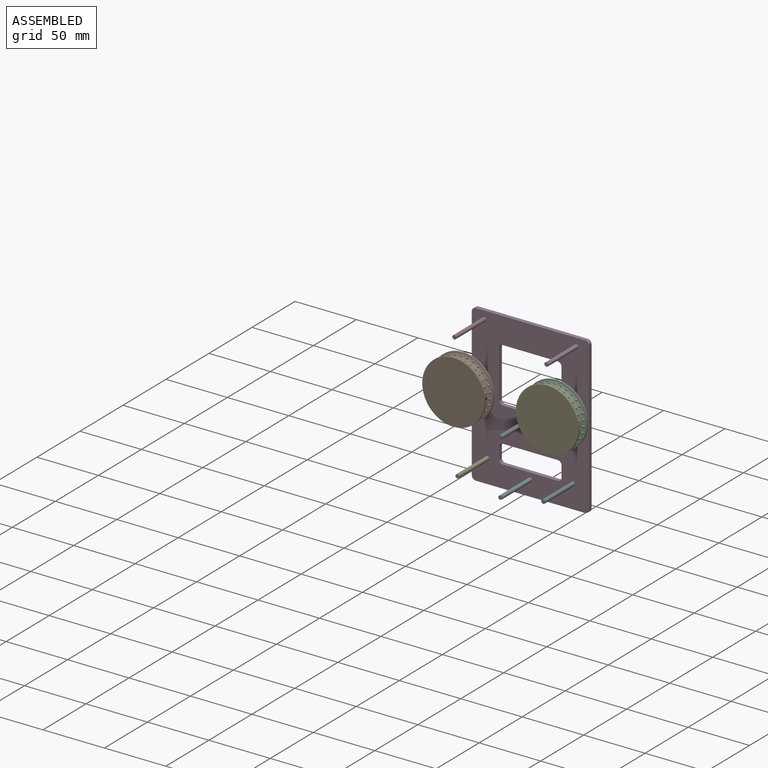
[diagram: assembled view]
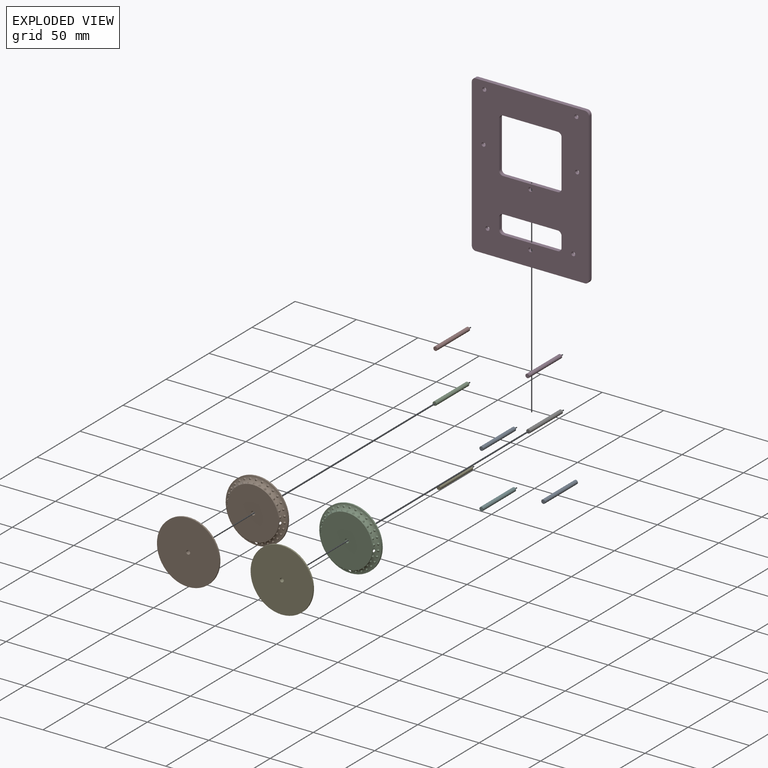
[diagram: exploded view]
GUIDED TOUR — MATED ASSEMBLY (Onshape document 18e1c9169c6198a0fb651a4e, AutoMate assembly 18e1c9169c6198a0fb651a4e_e62e723ce462140aba5e24f2_0214f7fa4d5858f7211a4e40_default)

This assembly has 13 components, labeled P0..P12 below (a component is one placed occurrence of a part; the same part can appear more than once), held together by 12 mates. A mate is a constraint between two components; its type names the relative motion it leaves free:
  FASTENED — locks the two components together rigidly (no relative motion).
Axis/direction vectors are unit vectors and 'through' points are millimeter coordinates, both in the assembly's world frame.

MATES
  1. FASTENED "Fastened 3": P2 <-> P3, direction (0.000, 1.000, 0.000) through (-29.36, -14.20, -14.71) mm
  2. FASTENED "Fastened 9": P12 <-> P6, direction (0.000, -1.000, 0.000) through (46.84, -52.30, -14.71) mm
  3. FASTENED "Fastened 5": P4 <-> P3, direction (0.000, 1.000, 0.000) through (-26.18, -14.20, -75.70) mm
  4. FASTENED "Fastened 8": P8 <-> P3, direction (0.000, 1.000, 0.000) through (43.67, -14.20, -75.70) mm
  5. FASTENED "Fastened 2": P7 <-> P3, direction (0.000, 1.000, 0.000) through (-28.72, -14.20, 25.90) mm
  6. FASTENED "Fastened 10": P12 <-> P10, direction (0.000, 1.000, 0.000) through (46.84, -46.59, -14.71) mm
  7. FASTENED "Fastened 6": P0 <-> P3, direction (0.000, 1.000, 0.000) through (8.74, -14.20, -37.60) mm
  8. FASTENED "Fastened 7": P5 <-> P3, direction (0.000, 1.000, 0.000) through (8.74, -14.20, -82.05) mm
  9. FASTENED "Fastened 12": P9 <-> P1, direction (0.000, -1.000, 0.000) through (-29.36, -46.59, -14.71) mm
  10. FASTENED "Fastened 1": P11 <-> P3, direction (0.000, 1.000, 0.000) through (46.21, -14.20, 25.90) mm
  11. FASTENED "Fastened 4": P6 <-> P3, direction (0.000, 1.000, 0.000) through (46.84, -14.20, -14.71) mm
  12. FASTENED "Fastened 11": P1 <-> P2, direction (0.000, -1.000, 0.000) through (-29.36, -52.30, -14.71) mm

ASSEMBLY ORDER
  1. P8 — the base component [order verified]
  2. P4 [order verified]
  3. P0 [order verified]
  4. P2 [order verified]
  5. P7 [order verified]
  6. P11 [order verified]
  7. P6 [order verified]
  8. P5 [order verified]
  9. P3 [order verified]
  10. P10 [order verified]
  11. P9 [order verified]
  12. P12 [order verified]
  13. P1 [order verified]
Order-tag legend:
  [order verified] — this step's position reverses a verified removal order: the component was checked to insert without passing through the ones already placed.

Of the 13 components, 1 carries the full construction recipe — the FeatureScript program that regenerates the part's solid from scratch; the rest are supplied as boundary geometry only.
Because this assembly has more than 12 components, the tour below covers the 12 most significant ones individually (every recipe-attached component first, then the largest by part volume), in assembly order; the remaining 1 are summarized together in a grouped section at the end.
Each toured component is shown spotlighted twice — in the assembled view, then in the exploded view, where a leader line traces a displaced component back to its assembled socket (saturated green if recipe-attached, orange if geometry-only; every other component desaturated gray) — followed by its recipe or geometry summary and the mates that hold it.
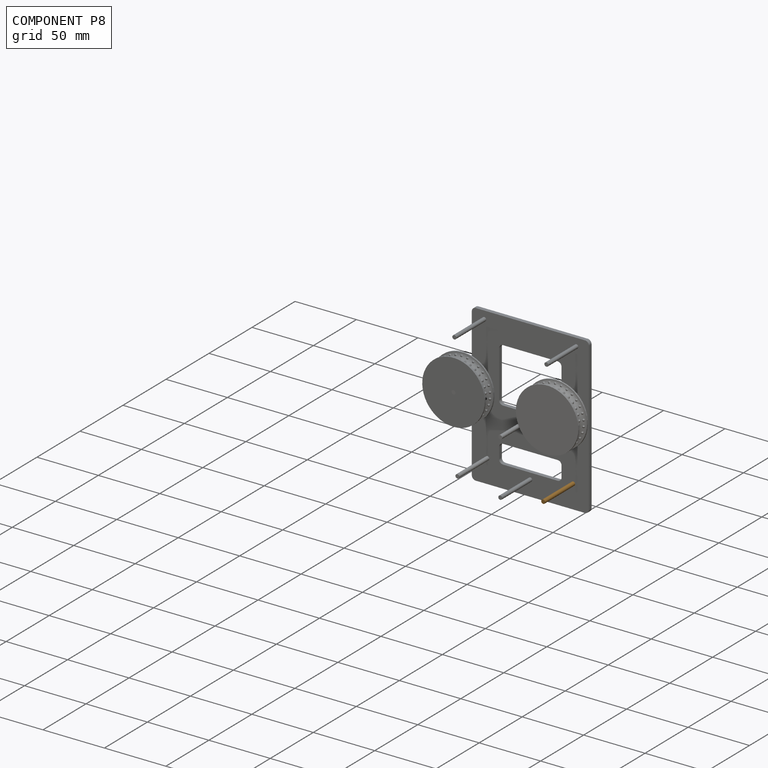
[diagram: component P8 — assembled]
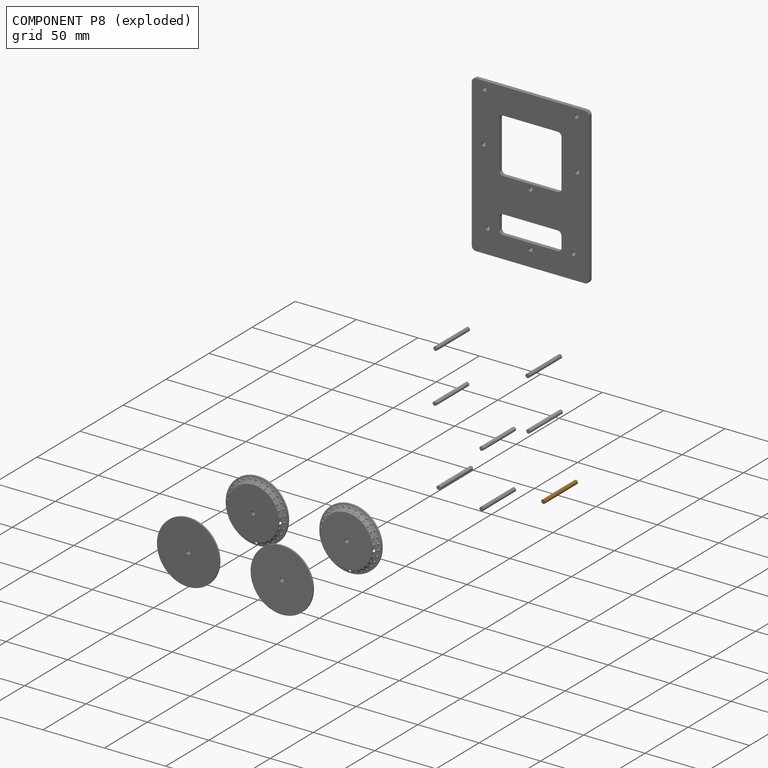
[diagram: component P8 — exploded]
COMPONENT P8 — geometry summary (no construction recipe available for this part):
  bounding box: 38.1 x 3.2 x 3.2 mm
  B-rep topology: 1 solid, 3 faces, 6 edges
  volume: 302 mm^3 (79% of its bounding box)
  symmetry: 2-fold rotationally symmetric about the x axis; revolution-symmetric about the y axis through its bounding-box center; 2-fold rotationally symmetric about the z axis; mirror-symmetric across its x mid-plane, y mid-plane, z mid-plane
Held by: FASTENED mate "Fastened 8" to P3.
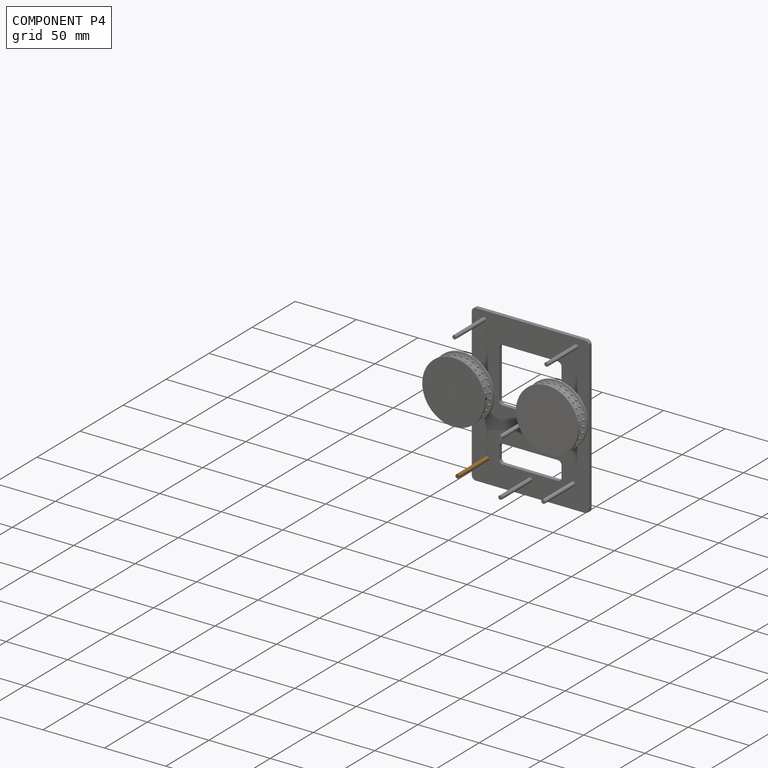
[diagram: component P4 — assembled]
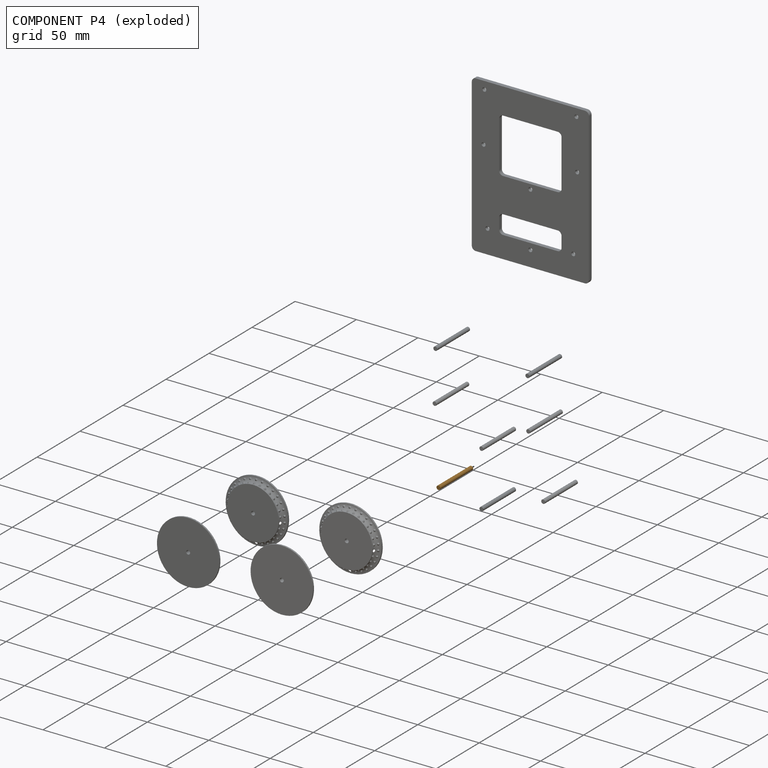
[diagram: component P4 — exploded]
COMPONENT P4 — geometry summary (no construction recipe available for this part):
  bounding box: 38.1 x 3.2 x 3.2 mm
  B-rep topology: 1 solid, 3 faces, 6 edges
  volume: 302 mm^3 (79% of its bounding box)
  symmetry: 2-fold rotationally symmetric about the x axis; revolution-symmetric about the y axis through its bounding-box center; 2-fold rotationally symmetric about the z axis; mirror-symmetric across its x mid-plane, y mid-plane, z mid-plane
Held by: FASTENED mate "Fastened 5" to P3.
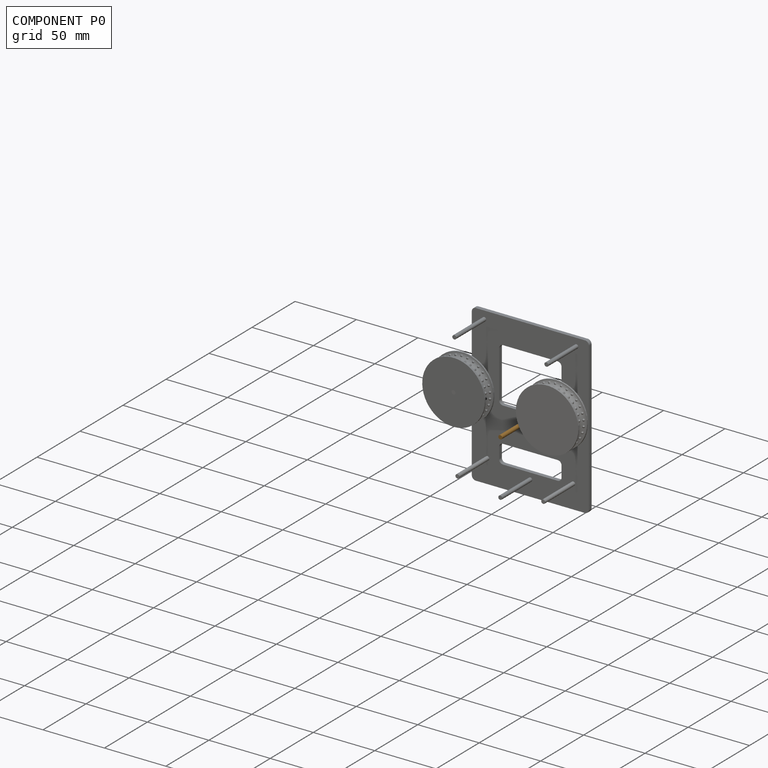
[diagram: component P0 — assembled]
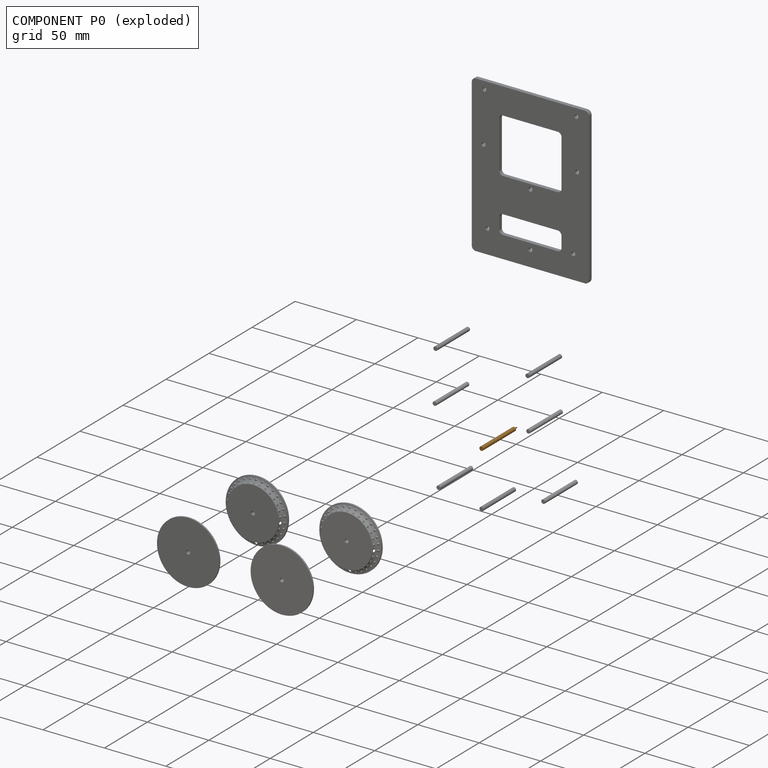
[diagram: component P0 — exploded]
COMPONENT P0 — geometry summary (no construction recipe available for this part):
  bounding box: 38.1 x 3.2 x 3.2 mm
  B-rep topology: 1 solid, 3 faces, 6 edges
  volume: 302 mm^3 (79% of its bounding box)
  symmetry: 2-fold rotationally symmetric about the x axis; revolution-symmetric about the y axis through its bounding-box center; 2-fold rotationally symmetric about the z axis; mirror-symmetric across its x mid-plane, y mid-plane, z mid-plane
Held by: FASTENED mate "Fastened 6" to P3.
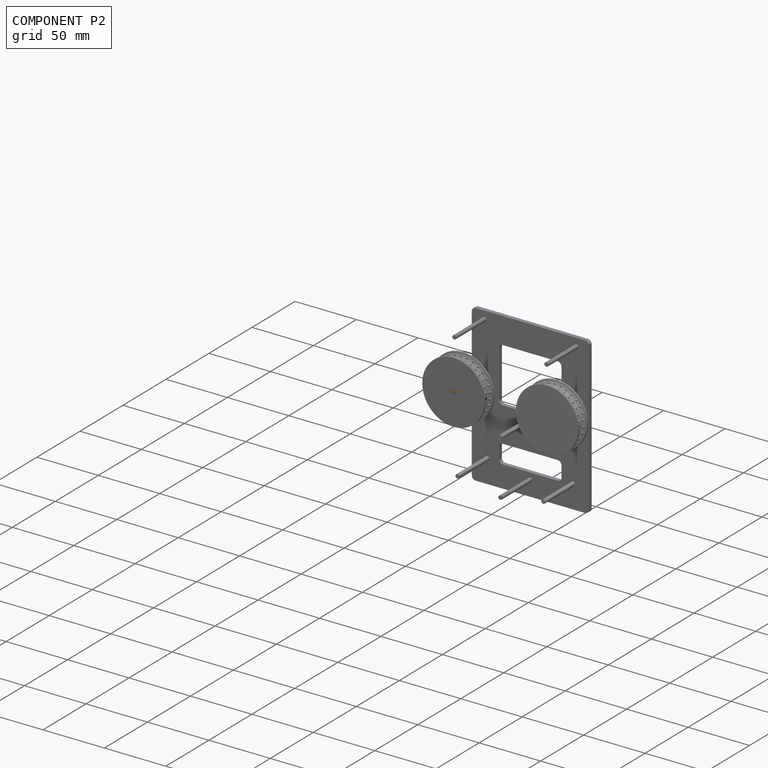
[diagram: component P2 — assembled]
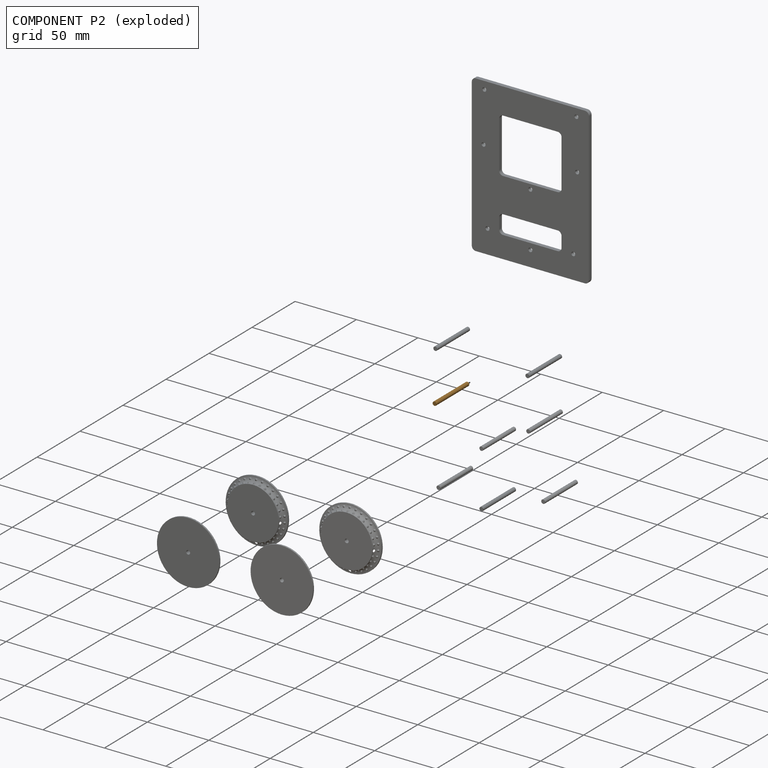
[diagram: component P2 — exploded]
COMPONENT P2 — geometry summary (no construction recipe available for this part):
  bounding box: 38.1 x 3.2 x 3.2 mm
  B-rep topology: 1 solid, 3 faces, 6 edges
  volume: 302 mm^3 (79% of its bounding box)
  symmetry: 2-fold rotationally symmetric about the x axis; revolution-symmetric about the y axis through its bounding-box center; 2-fold rotationally symmetric about the z axis; mirror-symmetric across its x mid-plane, y mid-plane, z mid-plane
Held by: FASTENED mate "Fastened 3" to P3; FASTENED mate "Fastened 11" to P1.
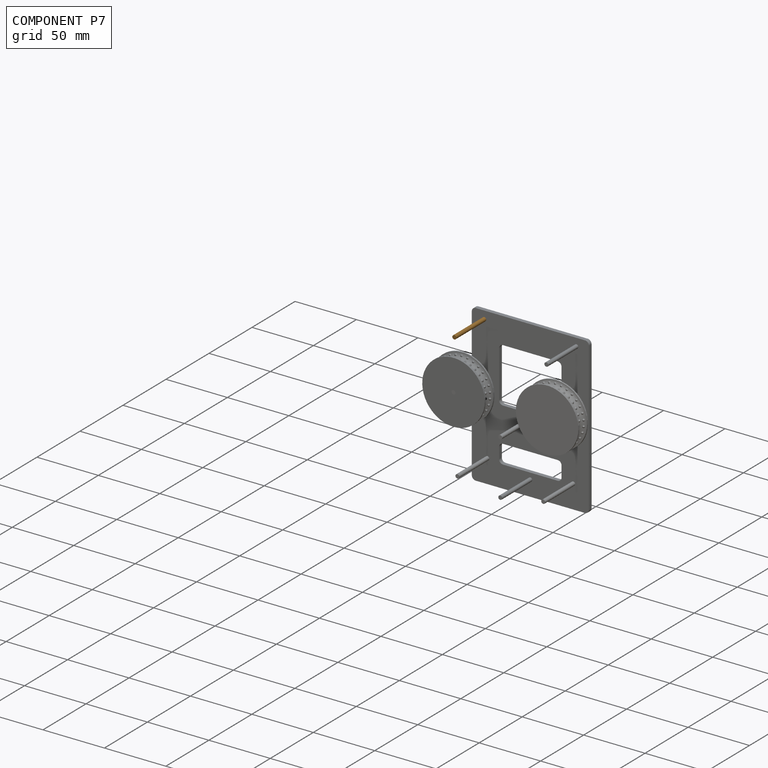
[diagram: component P7 — assembled]
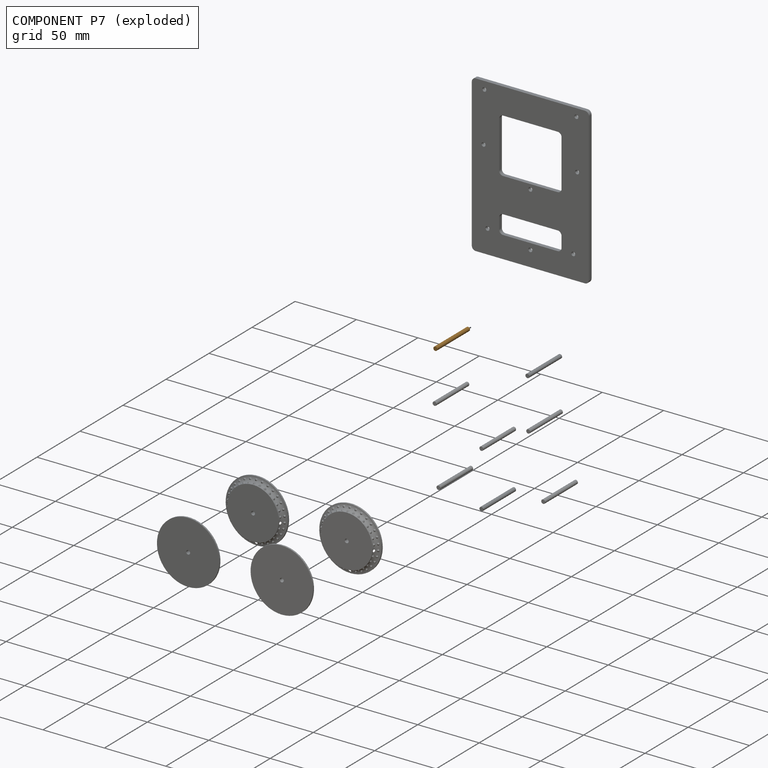
[diagram: component P7 — exploded]
COMPONENT P7 — geometry summary (no construction recipe available for this part):
  bounding box: 38.1 x 3.2 x 3.2 mm
  B-rep topology: 1 solid, 3 faces, 6 edges
  volume: 302 mm^3 (79% of its bounding box)
  symmetry: 2-fold rotationally symmetric about the x axis; revolution-symmetric about the y axis through its bounding-box center; 2-fold rotationally symmetric about the z axis; mirror-symmetric across its x mid-plane, y mid-plane, z mid-plane
Held by: FASTENED mate "Fastened 2" to P3.
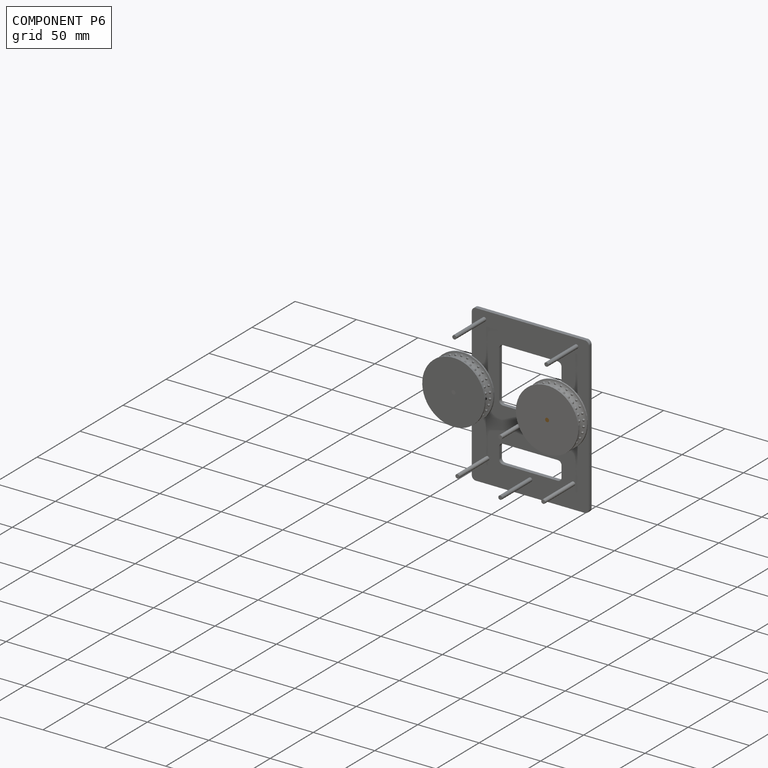
[diagram: component P6 — assembled]
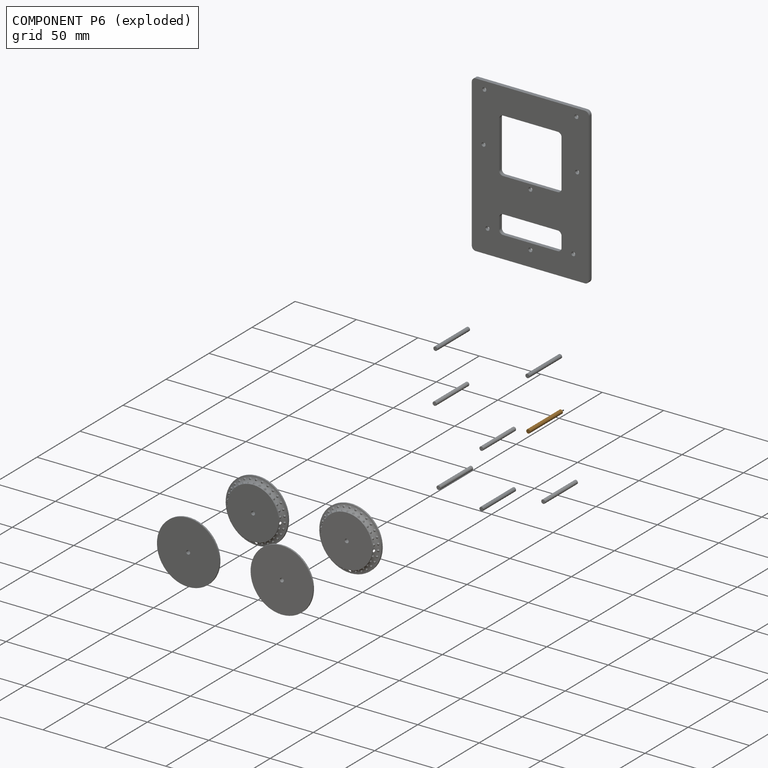
[diagram: component P6 — exploded]
COMPONENT P6 — geometry summary (no construction recipe available for this part):
  bounding box: 38.1 x 3.2 x 3.2 mm
  B-rep topology: 1 solid, 3 faces, 6 edges
  volume: 302 mm^3 (79% of its bounding box)
  symmetry: 2-fold rotationally symmetric about the x axis; revolution-symmetric about the y axis through its bounding-box center; 2-fold rotationally symmetric about the z axis; mirror-symmetric across its x mid-plane, y mid-plane, z mid-plane
Held by: FASTENED mate "Fastened 9" to P12; FASTENED mate "Fastened 4" to P3.
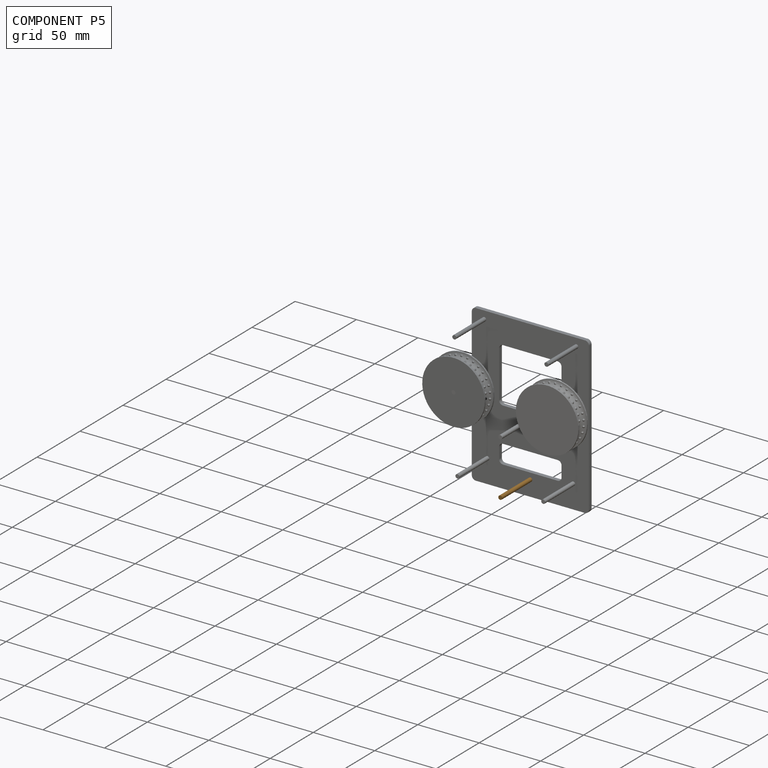
[diagram: component P5 — assembled]
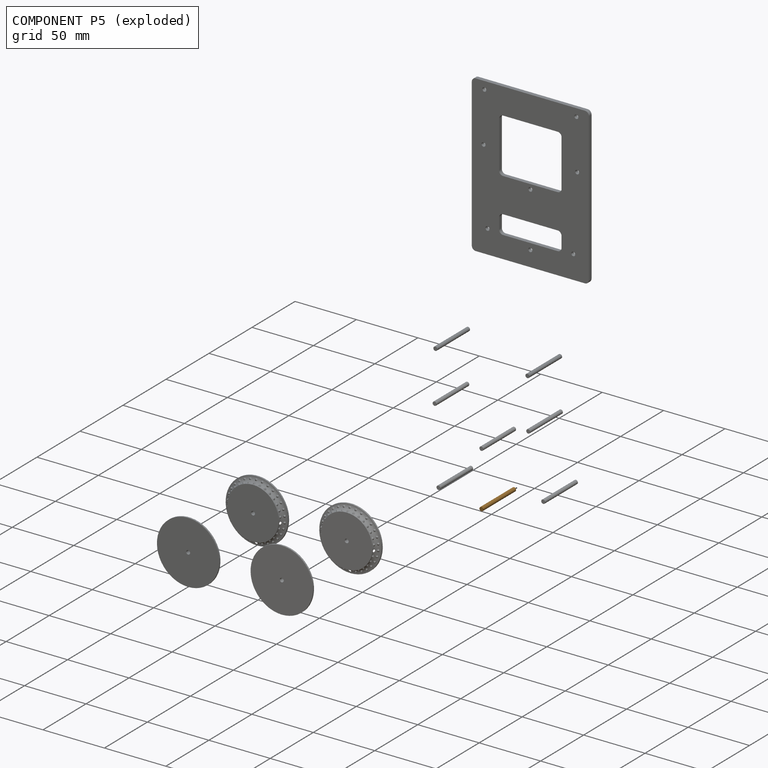
[diagram: component P5 — exploded]
COMPONENT P5 — geometry summary (no construction recipe available for this part):
  bounding box: 38.1 x 3.2 x 3.2 mm
  B-rep topology: 1 solid, 3 faces, 6 edges
  volume: 302 mm^3 (79% of its bounding box)
  symmetry: 2-fold rotationally symmetric about the x axis; revolution-symmetric about the y axis through its bounding-box center; 2-fold rotationally symmetric about the z axis; mirror-symmetric across its x mid-plane, y mid-plane, z mid-plane
Held by: FASTENED mate "Fastened 7" to P3.
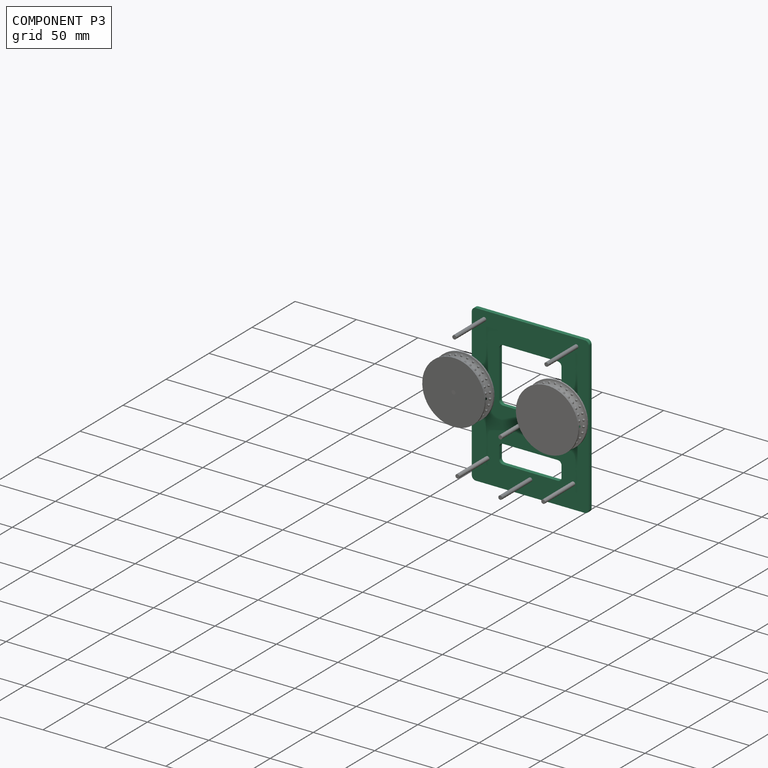
[diagram: component P3 — assembled]
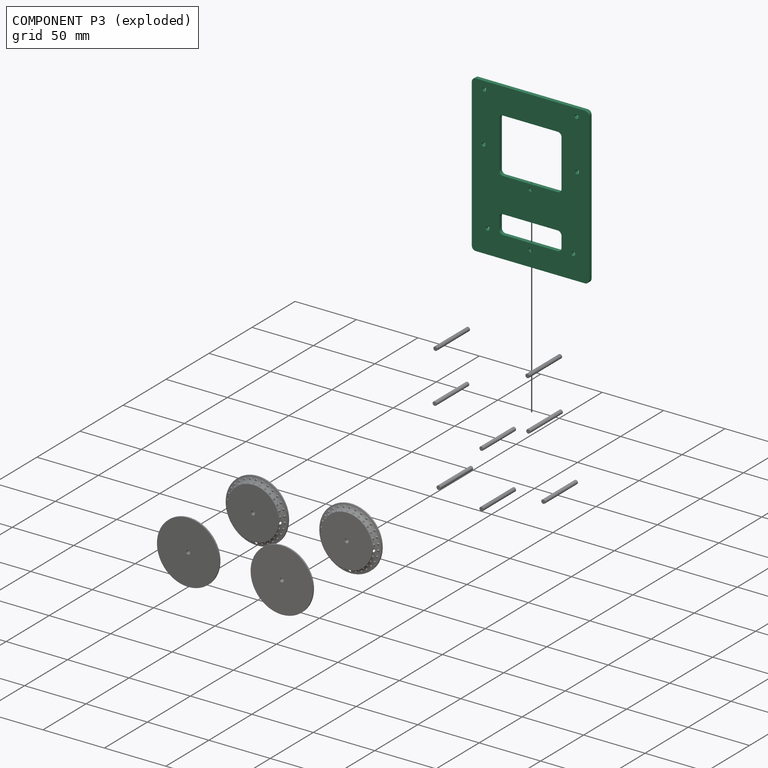
[diagram: component P3 — exploded]
COMPONENT P3 — recipe-attached (CADFS 00387814, mesh-verified: the recipe's output STEP matches this component's geometry to below the mesh-comparison resolution (tessellation chordal tolerance ~0.238 mm)).
Held by: FASTENED mate "Fastened 3" to P2; FASTENED mate "Fastened 5" to P4; FASTENED mate "Fastened 8" to P8; FASTENED mate "Fastened 2" to P7; FASTENED mate "Fastened 6" to P0; FASTENED mate "Fastened 7" to P5; FASTENED mate "Fastened 1" to P11; FASTENED mate "Fastened 4" to P6.
Construction recipe (FeatureScript — the CAD program that rebuilds this solid; sketch coordinates are in the units given by the * unit suffixes, e.g. mm):

FeatureScript 1511;
import(path : "onshape/std/geometry.fs", version : "1511.0");
import(path : "onshape/std/common.fs", version : "1511.0");
const mm = millimeter;
const VERTEX = EntityType.VERTEX;
const EDGE = EntityType.EDGE;
const FACE = EntityType.FACE;
const BODY = EntityType.BODY;
function v(x, y){return vector(x, y);}
function OD(order){return orderDisambiguation(order);}
function OSD(set){return originalSetDisambiguation(set);}
function TD(topology){return topologyDisambiguation(topology);}
function TDD(query){return trueDependencyDisambiguation(query);}
function sQuery(a, b, c) {return sketchEntityQuery(a, b, c);}

annotation { "Feature Type Name" : "Feature", "Feature Type Description" : "" }
export const myFeature = defineFeature(function(context is Context, id is Id, definition is map)
    precondition{}
    {
        {
            var Q0;
            Q0=qCreatedBy(makeId("Front.planeOp"),FACE);
            var sketch = newSketch(context, id + "F0", { "sketchPlane" : qUnion([Q0])});
            skLineSegment(sketch, "E0.bottom", {"start": v(3.17, 0) * mm, "end": v(92.08, 0) * mm});
            skLineSegment(sketch, "E1.MirrorCS", {"start": v(0, -3.17) * mm, "end": v(0, -123.83) * mm});
            skLineSegment(sketch, "E2.MirrorCS", {"start": v(95.25, -3.17) * mm, "end": v(95.25, -123.83) * mm});
            skCircle(sketch, "E3.MirrorC", {"center": v(85.73, -46.95) * mm, "radius": 31.75 * mm, "construction": true});
            skCircle(sketch, "E4.MirrorC", {"center": v(47.63, -69.85) * mm, "radius": 31.75 * mm, "construction": true});
            skCircle(sketch, "E5.MirrorC", {"center": v(85.73, -46.95) * mm, "radius": 1.59 * mm});
            skLineSegment(sketch, "E6.MirrorCS", {"start": v(47.63, -127) * mm, "end": v(47.62, 0) * mm, "construction": true});
            skLineSegment(sketch, "E7.MirrorCS", {"start": v(3.17, -127) * mm, "end": v(92.08, -127) * mm});
            skCircle(sketch, "E8.MirrorC", {"center": v(9.52, -46.95) * mm, "radius": 1.59 * mm});
            skCircle(sketch, "E9.MirrorC", {"center": v(9.52, -46.95) * mm, "radius": 31.75 * mm, "construction": true});
            skCircle(sketch, "E10.MirrorC", {"center": v(47.63, -69.85) * mm, "radius": 1.59 * mm});
            skCircle(sketch, "E11.MirrorC", {"center": v(47.63, -69.85) * mm, "radius": 12.7 * mm, "construction": true});
            skCircle(sketch, "E12.MirrorC", {"center": v(47.62, -114.3) * mm, "radius": 12.7 * mm, "construction": true});
            skCircle(sketch, "E13.MirrorC", {"center": v(47.62, -114.3) * mm, "radius": 1.59 * mm});
            skCircle(sketch, "E14", {"center": v(10.16, -6.35) * mm, "radius": 1.59 * mm});
            skCircle(sketch, "E15", {"center": v(12.7, -107.95) * mm, "radius": 1.59 * mm});
            skCircle(sketch, "E16.MirrorC", {"center": v(82.55, -107.95) * mm, "radius": 1.59 * mm});
            skLineSegment(sketch, "E17.bottom", {"start": v(25.4, -21.39) * mm, "end": v(69.85, -21.39) * mm});
            skLineSegment(sketch, "E17.top", {"start": v(25.4, -65.84) * mm, "end": v(69.85, -65.84) * mm});
            skLineSegment(sketch, "E17.left", {"start": v(22.23, -24.56) * mm, "end": v(22.23, -62.66) * mm});
            skLineSegment(sketch, "E17.right", {"start": v(73.03, -24.56) * mm, "end": v(73.03, -62.66) * mm});
            skPoint(sketch, "E17.middle", {"position": v(47.63, -43.61) * mm});
            skLineSegment(sketch, "E18.bottom", {"start": v(69.85, -93.98) * mm, "end": v(25.4, -93.98) * mm});
            skLineSegment(sketch, "E18.top", {"start": v(69.85, -109.22) * mm, "end": v(25.4, -109.22) * mm});
            skLineSegment(sketch, "E18.left", {"start": v(73.03, -97.15) * mm, "end": v(73.03, -106.05) * mm});
            skLineSegment(sketch, "E18.right", {"start": v(22.23, -97.15) * mm, "end": v(22.23, -106.05) * mm});
            skPoint(sketch, "E18.middle", {"position": v(47.63, -101.6) * mm});
            skPoint(sketch, "E19.visualSharp", {"position": v(22.23, -21.39) * mm});
            skArc(sketch, "E19.filletArc", {"start": v(25.4, -21.39) * mm, "mid": v(23.15, -22.32) * mm, "end": v(22.23, -24.56) * mm});
            skPoint(sketch, "E20.visualSharp", {"position": v(73.03, -21.39) * mm});
            skArc(sketch, "E20.filletArc", {"start": v(73.03, -24.56) * mm, "mid": v(72.1, -22.32) * mm, "end": v(69.85, -21.39) * mm});
            skPoint(sketch, "E21.visualSharp", {"position": v(73.03, -65.84) * mm});
            skArc(sketch, "E21.filletArc", {"start": v(69.85, -65.84) * mm, "mid": v(72.1, -64.9) * mm, "end": v(73.03, -62.66) * mm});
            skPoint(sketch, "E22.visualSharp", {"position": v(22.23, -65.84) * mm});
            skArc(sketch, "E22.filletArc", {"start": v(22.23, -62.66) * mm, "mid": v(23.15, -64.9) * mm, "end": v(25.4, -65.84) * mm});
            skPoint(sketch, "E23.visualSharp", {"position": v(22.23, -93.98) * mm});
            skArc(sketch, "E23.filletArc", {"start": v(25.4, -93.98) * mm, "mid": v(23.15, -94.9) * mm, "end": v(22.23, -97.15) * mm});
            skPoint(sketch, "E24.visualSharp", {"position": v(73.03, -93.98) * mm});
            skArc(sketch, "E24.filletArc", {"start": v(73.02, -97.15) * mm, "mid": v(72.1, -94.9) * mm, "end": v(69.85, -93.98) * mm});
            skPoint(sketch, "E25.visualSharp", {"position": v(73.03, -109.22) * mm});
            skArc(sketch, "E25.filletArc", {"start": v(69.85, -109.22) * mm, "mid": v(72.1, -108.3) * mm, "end": v(73.02, -106.05) * mm});
            skPoint(sketch, "E26.visualSharp", {"position": v(22.23, -109.22) * mm});
            skArc(sketch, "E26.filletArc", {"start": v(22.23, -106.05) * mm, "mid": v(23.15, -108.3) * mm, "end": v(25.4, -109.22) * mm});
            skPoint(sketch, "E27.visualSharp", {"position": v(95.25, 0) * mm});
            skArc(sketch, "E27.filletArc", {"start": v(95.25, -3.17) * mm, "mid": v(94.32, -0.93) * mm, "end": v(92.08, 0) * mm});
            skPoint(sketch, "E28.visualSharp", {"position": v(0, 0) * mm});
            skArc(sketch, "E28.filletArc", {"start": v(3.17, 0) * mm, "mid": v(0.93, -0.93) * mm, "end": v(0, -3.17) * mm});
            skPoint(sketch, "E29.visualSharp", {"position": v(0, -127) * mm});
            skArc(sketch, "E29.filletArc", {"start": v(0, -123.83) * mm, "mid": v(0.93, -126.07) * mm, "end": v(3.17, -127) * mm});
            skPoint(sketch, "E30.visualSharp", {"position": v(95.25, -127) * mm});
            skArc(sketch, "E30.filletArc", {"start": v(92.08, -127) * mm, "mid": v(94.32, -126.07) * mm, "end": v(95.25, -123.83) * mm});
            skCircle(sketch, "E31.MirrorC", {"center": v(85.09, -6.35) * mm, "radius": 1.59 * mm});
            skSolve(sketch);
        }
        {
            var Q0;
            Q0 = qSketchRegion(id + "F0", true);
            extrude(context, id + "F1", {"entities" : qUnion([Q0]), "depth" : 3.17 * mm, "offsetDistance" : 25.4 * mm});
        }
    });
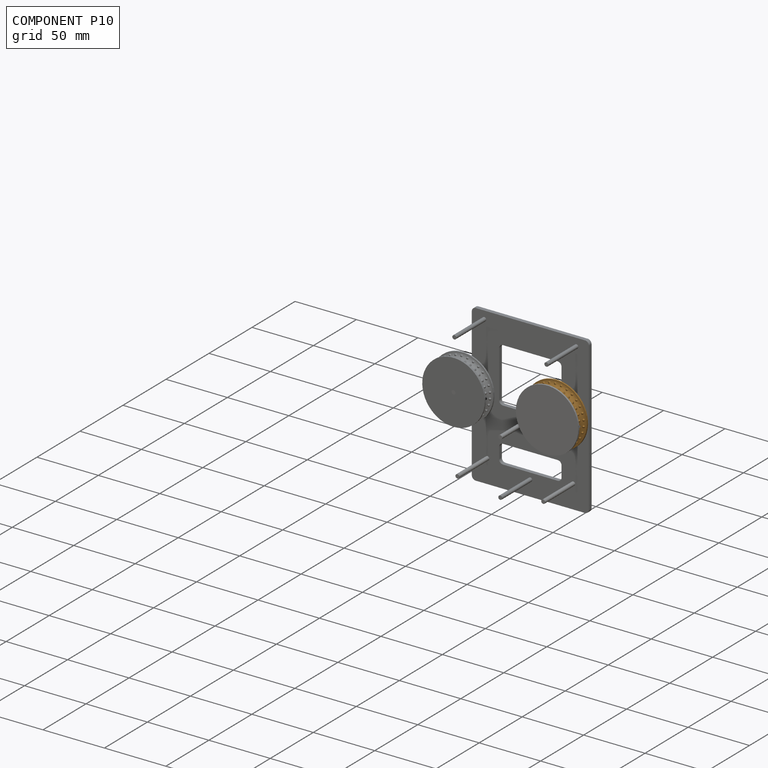
[diagram: component P10 — assembled]
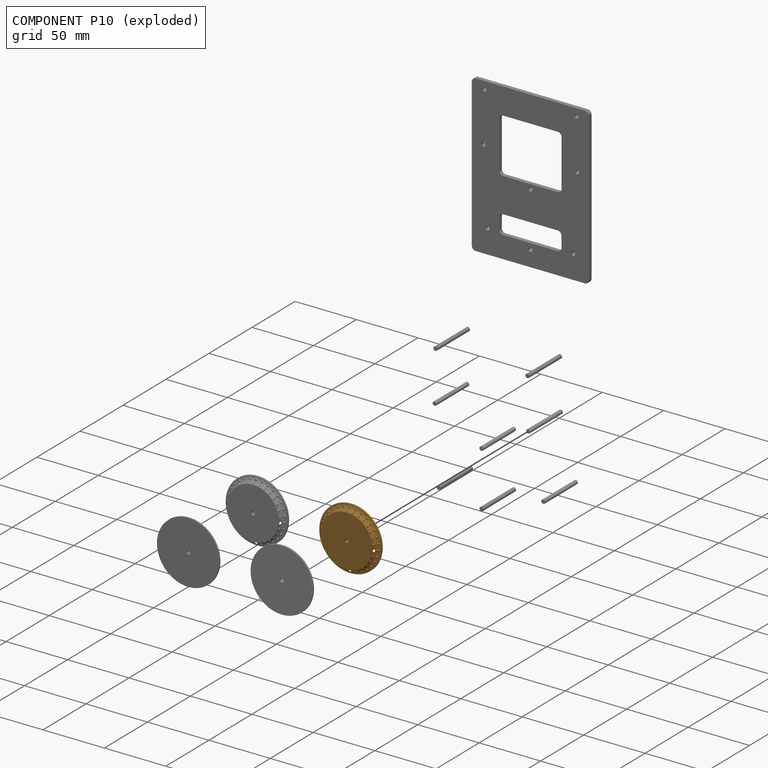
[diagram: component P10 — exploded]
COMPONENT P10 — geometry summary (no construction recipe available for this part):
  bounding box: 61.8 x 61.8 x 8.9 mm
  B-rep topology: 1 solid, 65 faces, 450 edges
  volume: 9307 mm^3 (27% of its bounding box)
  symmetry: 6-fold rotationally symmetric about the y axis; mirror-symmetric across its x mid-plane, z mid-plane
Held by: FASTENED mate "Fastened 10" to P12.
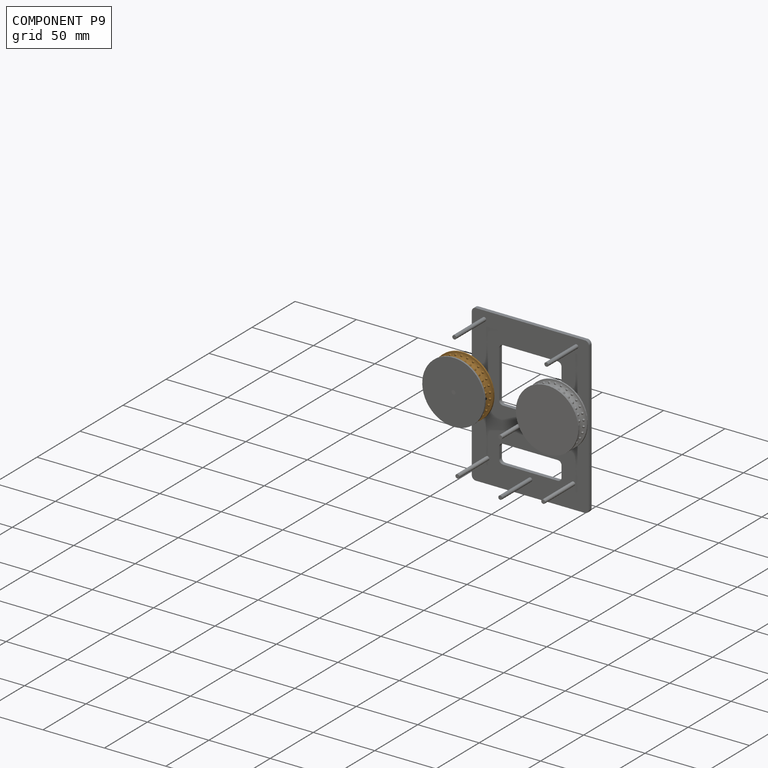
[diagram: component P9 — assembled]
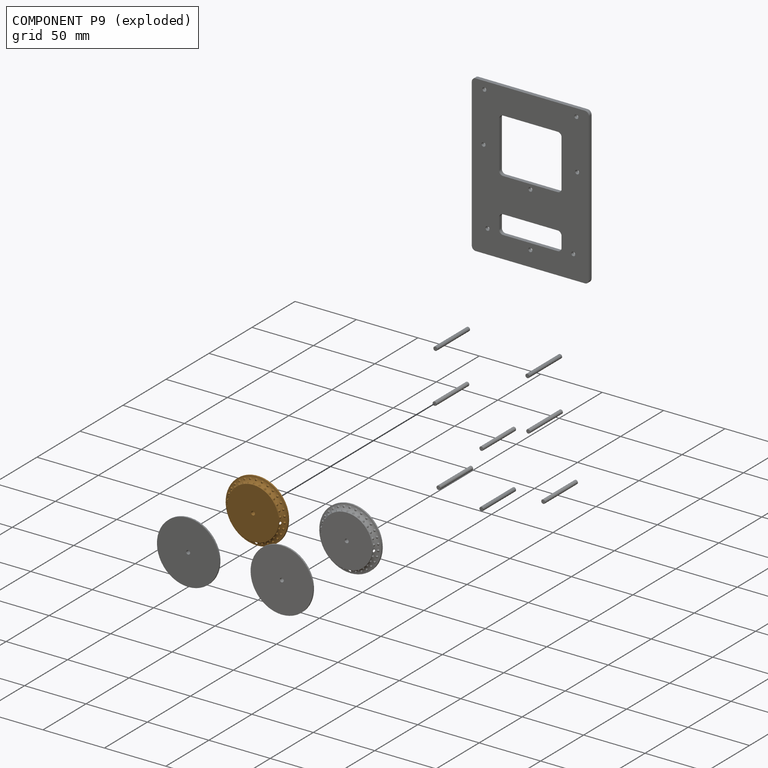
[diagram: component P9 — exploded]
COMPONENT P9 — geometry summary (no construction recipe available for this part):
  bounding box: 61.8 x 61.8 x 8.9 mm
  B-rep topology: 1 solid, 65 faces, 450 edges
  volume: 9307 mm^3 (27% of its bounding box)
  symmetry: 6-fold rotationally symmetric about the y axis; mirror-symmetric across its x mid-plane, z mid-plane
Held by: FASTENED mate "Fastened 12" to P1.
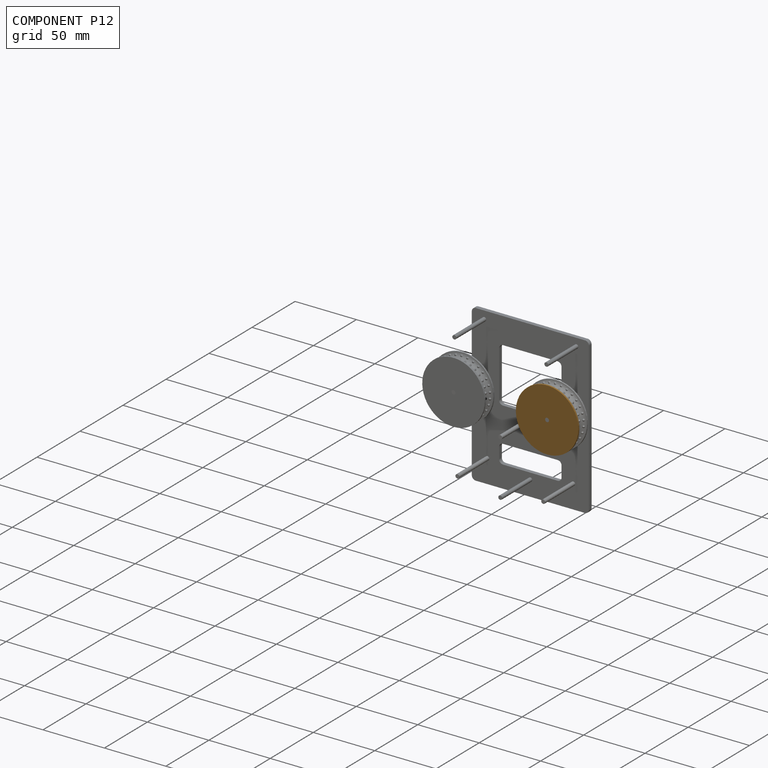
[diagram: component P12 — assembled]
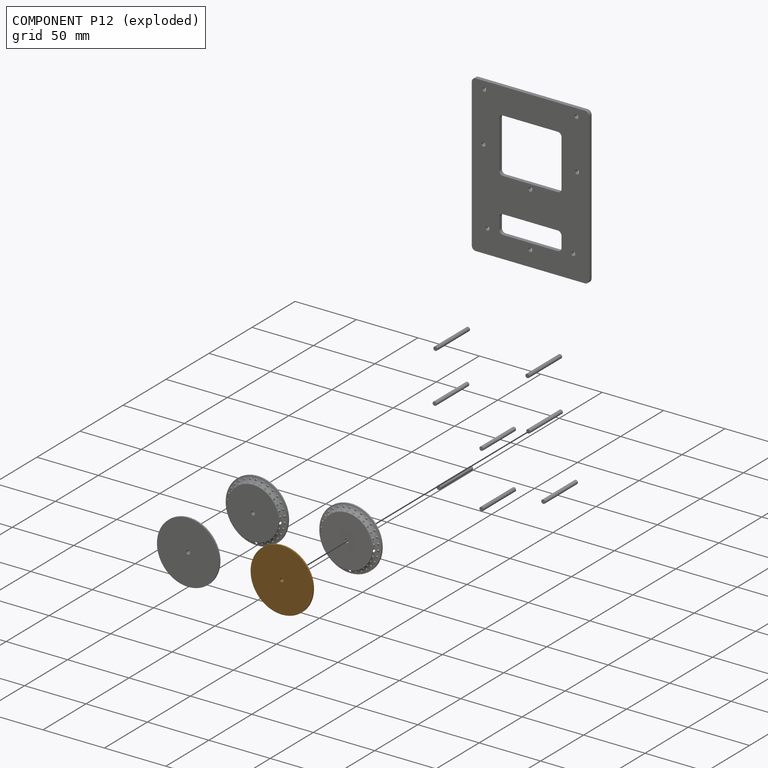
[diagram: component P12 — exploded]
COMPONENT P12 — geometry summary (no construction recipe available for this part):
  bounding box: 55.0 x 55.0 x 8.9 mm
  B-rep topology: 1 solid, 65 faces, 450 edges
  volume: 9307 mm^3 (35% of its bounding box)
  symmetry: 6-fold rotationally symmetric about the y axis; mirror-symmetric across its x mid-plane, z mid-plane
Held by: FASTENED mate "Fastened 9" to P6; FASTENED mate "Fastened 10" to P10.
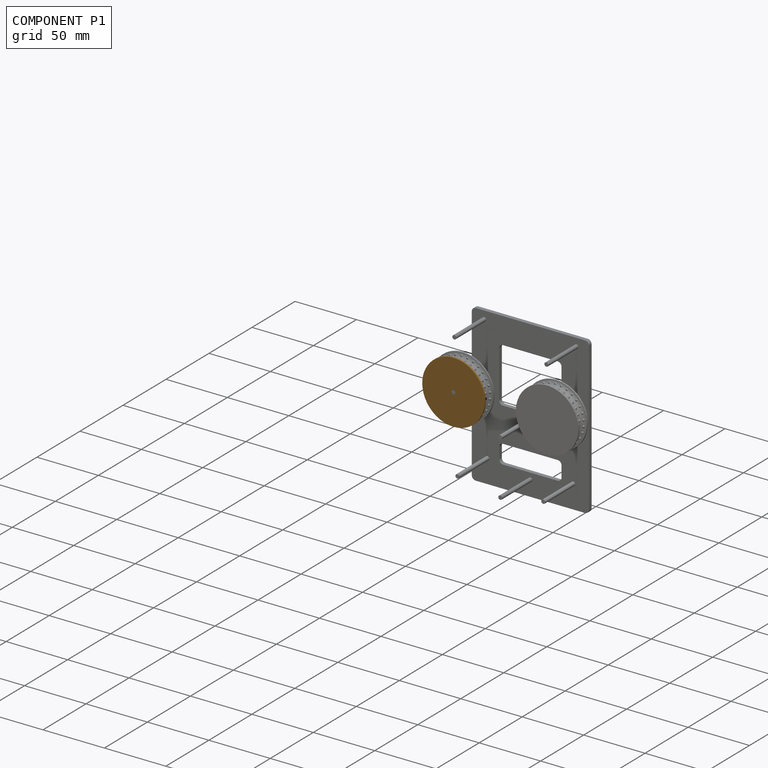
[diagram: component P1 — assembled]
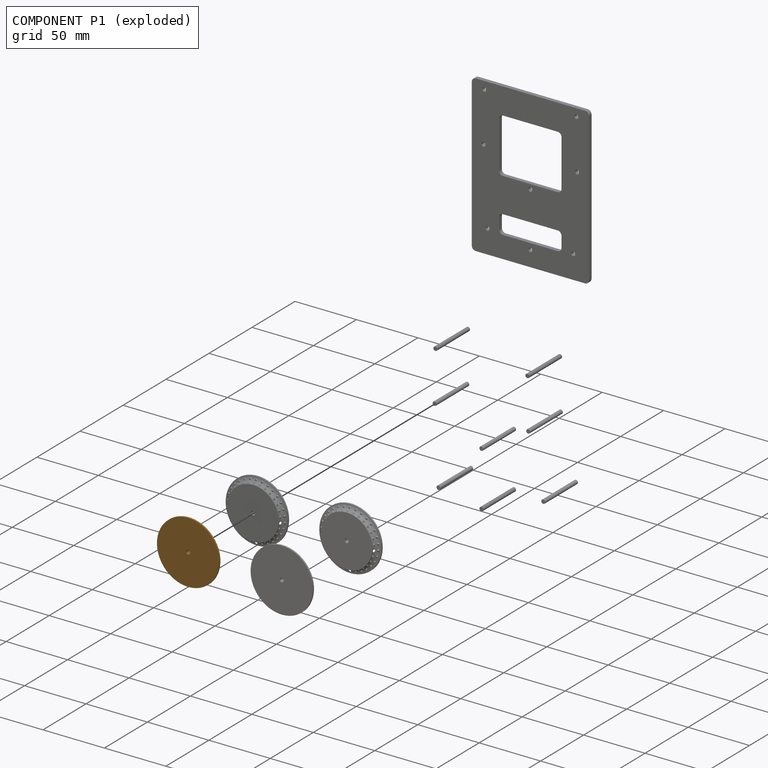
[diagram: component P1 — exploded]
COMPONENT P1 — geometry summary (no construction recipe available for this part):
  bounding box: 55.0 x 55.0 x 8.9 mm
  B-rep topology: 1 solid, 65 faces, 450 edges
  volume: 9307 mm^3 (35% of its bounding box)
  symmetry: 6-fold rotationally symmetric about the y axis; mirror-symmetric across its x mid-plane, z mid-plane
Held by: FASTENED mate "Fastened 12" to P9; FASTENED mate "Fastened 11" to P2.
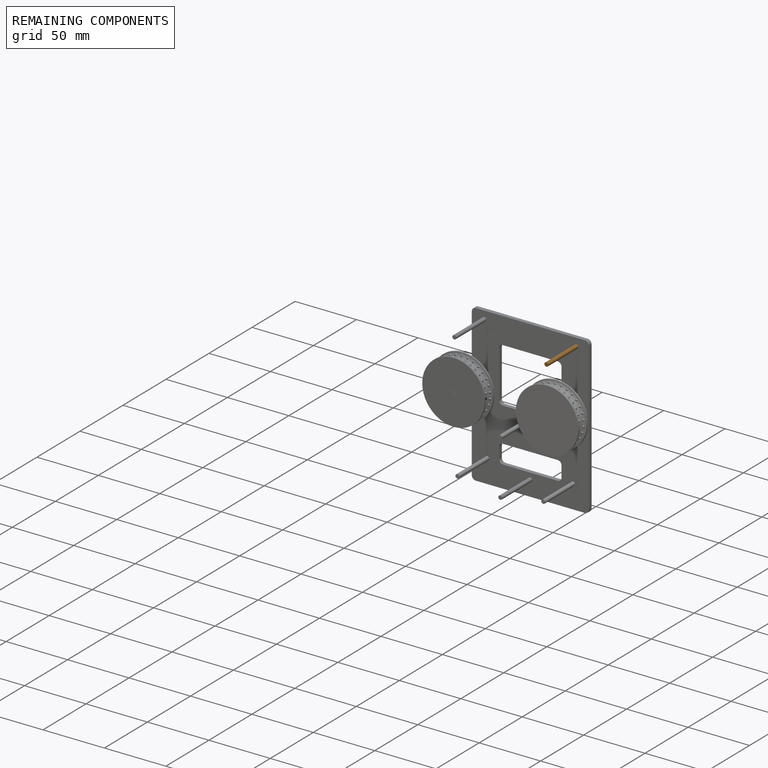
[diagram: remaining components — assembled]
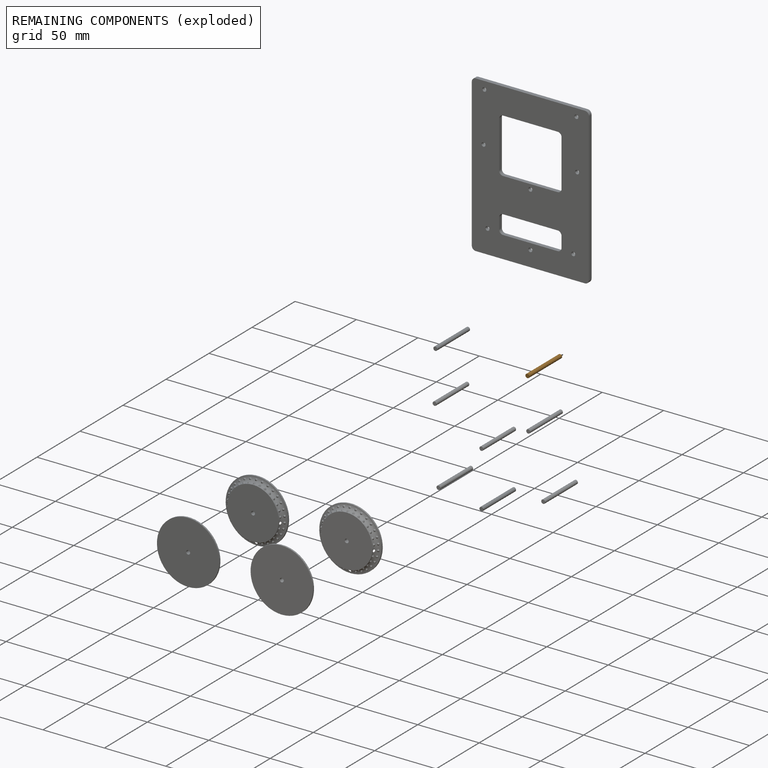
[diagram: remaining components — exploded]
REMAINING COMPONENTS (grouped) — the 1 components below fall outside the per-component tour by the significance rule stated above; both spotlight views highlight the whole group.
  P11: bounding box 38.1 x 3.2 x 3.2 mm, volume 302 mm^3. Held by: FASTENED mate "Fastened 1" to P3.
PROVENANCE & LICENSES
Assembly (occurrences, transforms, mates, per-part STEP geometry): AutoMate dataset, Zenodo record 7776208, CC0.
Construction recipes: CADFS (HuggingFace VladPyatov/CADFS, CC-BY-4.0, layered over the ABC dataset), FeatureScript reconstruction programs keyed by ABC model id.
Join: ABC meta listings map ABC model id -> Onshape documentId; within a shared document, parts are matched by geometric signature (bounding-box dims + volume at 0.1% relative tolerance, exact B-rep face/solid counts).
Verification: 1 of this assembly's 13 components carries a recipe attachment, and every attachment is mesh-verified: the CADFS STEP and the AutoMate member STEP were compared as meshes in their shared local frame (symmetric sampled-point-to-mesh distance); worst across the 1 attachment: below the mesh-comparison resolution (tessellation chordal tolerance ~0.238 mm) on a 159 mm part.
Renders: orthographic iso camera (az 35 / el 25); the floor grid conveys scale (grid pitch printed in each image; no ruler). In the exploded view each component is displaced by its stored offset vector: the offsets alone carry the explosion direction (mate normal/axis signs are not orientation cues and do not encode it), and separation distances are assigned per mate-chain, not proportionally to assembly-order depth.
